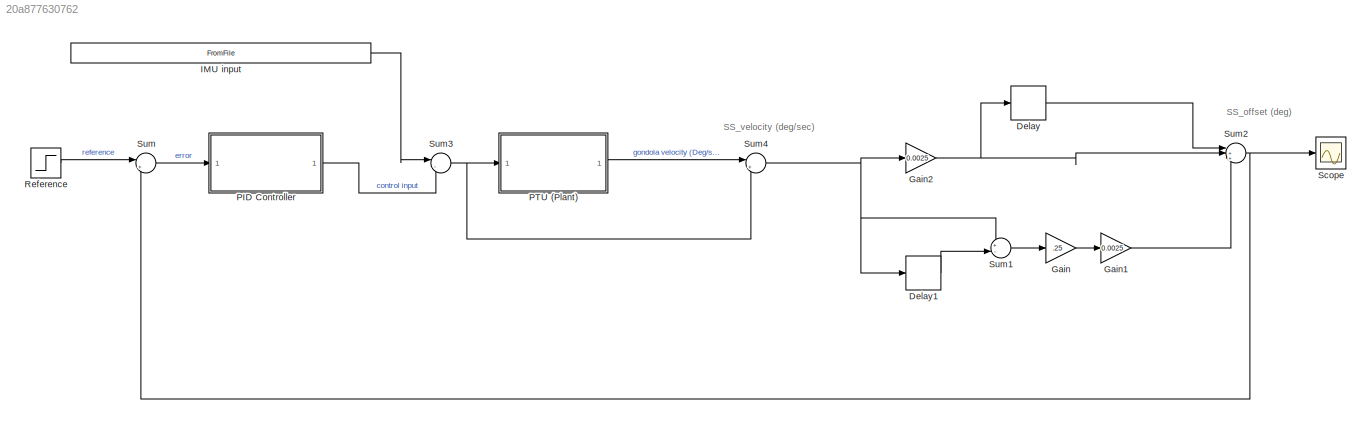
MODEL slx_20a877630762
KIND model
CONFIG AbsTol = auto
CONFIG FixedStep = auto
CONFIG MaxStep = 0.01
CONFIG MinStep = auto
CONFIG RelTol = 1e-4
CONFIG SampleTimeConstraint = Unconstrained
CONFIG Solver = VariableStepAuto
CONFIG SolverMode = Auto
CONFIG SolverName = VariableStepAuto
CONFIG StartTime = 0.0
CONFIG StopTime = 2
BLOCK [Delay] Delay
  DelayLength = 1
  InitialCondition = 0
  InputPortMap = u0
  Ports = [1, 1]
BLOCK [Delay] Delay1
  DelayLength = 1
  InitialCondition = 0
  InputPortMap = u0
  Ports = [1, 1]
BLOCK [Gain] Gain
  Gain = .25
  OutDataTypeStr = Inherit: Inherit via internal rule
  ParamDataTypeStr = Inherit: Inherit via internal rule
  SaturateOnIntegerOverflow = off
BLOCK [Gain] Gain1
  Gain = 0.0025
  OutDataTypeStr = Inherit: Inherit via internal rule
  ParamDataTypeStr = Inherit: Inherit via internal rule
  SaturateOnIntegerOverflow = off
BLOCK [Gain] Gain2
  Gain = 0.0025
  OutDataTypeStr = Inherit: Inherit via internal rule
  ParamDataTypeStr = Inherit: Inherit via internal rule
  SaturateOnIntegerOverflow = off
BLOCK [FromFile] IMU input
  FileName = <path>
  SampleTime = 300
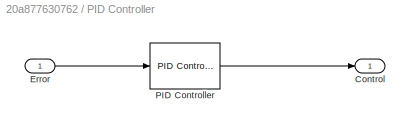
BLOCK [SubSystem] PID Controller
  Ports = [1, 1]
  RequestExecContextInheritance = off
  Variant = off
BLOCK [Outport] PID Controller/Control
  IconDisplay = Port number
BLOCK [Inport] PID Controller/Error
  IconDisplay = Port number
BLOCK [Reference] PID Controller/PID Controller  REF=simulink/Continuous/PID Controller
  Ports = [1, 1]
  SourceBlock = simulink/Continuous/PID Controller
  SourceType = PID 1dof
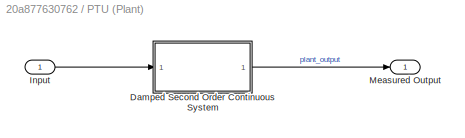
BLOCK [SubSystem] PTU (Plant)
  Ports = [1, 1]
  RequestExecContextInheritance = off
  Variant = off
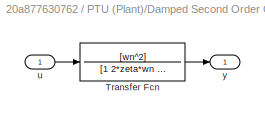
BLOCK [SubSystem] PTU (Plant)/Damped Second Order Continuous System
  Ports = [1, 1]
  RequestExecContextInheritance = off
  Variant = off
BLOCK [TransferFcn] PTU (Plant)/Damped Second Order Continuous System/Transfer Fcn
  Denominator = [1 2*zeta*wn wn^2]
  Numerator = [wn^2]
BLOCK [Inport] PTU (Plant)/Damped Second Order Continuous System/u
  IconDisplay = Port number
BLOCK [Outport] PTU (Plant)/Damped Second Order Continuous System/y
  IconDisplay = Port number
BLOCK [Inport] PTU (Plant)/Input
  IconDisplay = Port number
BLOCK [Outport] PTU (Plant)/Measured Output
  IconDisplay = Port number
BLOCK [Step] Reference
  SampleTime = 0
BLOCK [Scope] Scope
  Ports = [1]
  ScopeSpecificationString = Simulink.scopes.TimeScopeBlockCfg('CurrentConfiguration', extmgr.ConfigurationSet(extmgr.Configuration('Core','General UI',true),extmgr.Configuration('Core','Source UI',true),extmgr.Configuration('Sources','WiredSimulink',true),extmgr.Configuration('Visuals','Time Domain',true),extmgr.Configuration('Tools','Plot Navigation',true),extmgr.Configuration('Tools','Measurements',true,'Version','2016a'))...<+52ch>
BLOCK [Sum] Sum
  IconShape = round
  InputSameDT = off
  Inputs = |+-
  OutDataTypeStr = Inherit: Inherit via internal rule
  Ports = [2, 1]
  SaturateOnIntegerOverflow = off
BLOCK [Sum] Sum1
  IconShape = round
  InputSameDT = off
  Inputs = +-
  OutDataTypeStr = Inherit: Inherit via internal rule
  Ports = [2, 1]
  SaturateOnIntegerOverflow = off
BLOCK [Sum] Sum2
  IconShape = round
  InputSameDT = off
  Inputs = |+++
  OutDataTypeStr = Inherit: Inherit via internal rule
  Ports = [3, 1]
  SaturateOnIntegerOverflow = off
BLOCK [Sum] Sum3
  IconShape = round
  InputSameDT = off
  Inputs = |-+
  OutDataTypeStr = Inherit: Inherit via internal rule
  Ports = [2, 1]
  SaturateOnIntegerOverflow = off
BLOCK [Sum] Sum4
  IconShape = round
  InputSameDT = off
  Inputs = |++
  OutDataTypeStr = Inherit: Inherit via internal rule
  Ports = [2, 1]
  SaturateOnIntegerOverflow = off
ANNOTATION (root): SS_offset (deg)
ANNOTATION (root): SS_velocity (deg/sec)
LINE Delay1:1 -> Sum1:2
LINE Delay:1 -> Sum2:1
LINE Gain1:1 -> Sum2:3
NET Gain2:1 -> Delay:1, Sum2:2
LINE Gain:1 -> Gain1:1
LINE IMU input:1 -> Sum3:1
LINE PID Controller/Error:1 -> PID Controller/PID Controller:1
LINE PID Controller/PID Controller:1 -> PID Controller/Control:1
LINE PID Controller:1 -> Sum3:2
LINE PTU (Plant)/Damped Second Order Continuous System/Transfer Fcn:1 -> PTU (Plant)/Damped Second Order Continuous System/y:1
LINE PTU (Plant)/Damped Second Order Continuous System/u:1 -> PTU (Plant)/Damped Second Order Continuous System/Transfer Fcn:1
LINE PTU (Plant)/Damped Second Order Continuous System:1 -> PTU (Plant)/Measured Output:1
LINE PTU (Plant)/Input:1 -> PTU (Plant)/Damped Second Order Continuous System:1
LINE PTU (Plant):1 -> Sum4:1
LINE Reference:1 -> Sum:1
LINE Sum1:1 -> Gain:1
NET Sum2:1 -> Scope:1, Sum:2
NET Sum3:1 -> PTU (Plant):1, Sum4:2
NET Sum4:1 -> Delay1:1, Gain2:1, Sum1:1
LINE Sum:1 -> PID Controller:1
note: NET lines group one-source signal fan-out (src -> all destinations, sorted); 1:1 wires keep LINE
note: 1 file-system path scrubbed to <path> (not preserved elsewhere — flat text is the only slx artifact)
